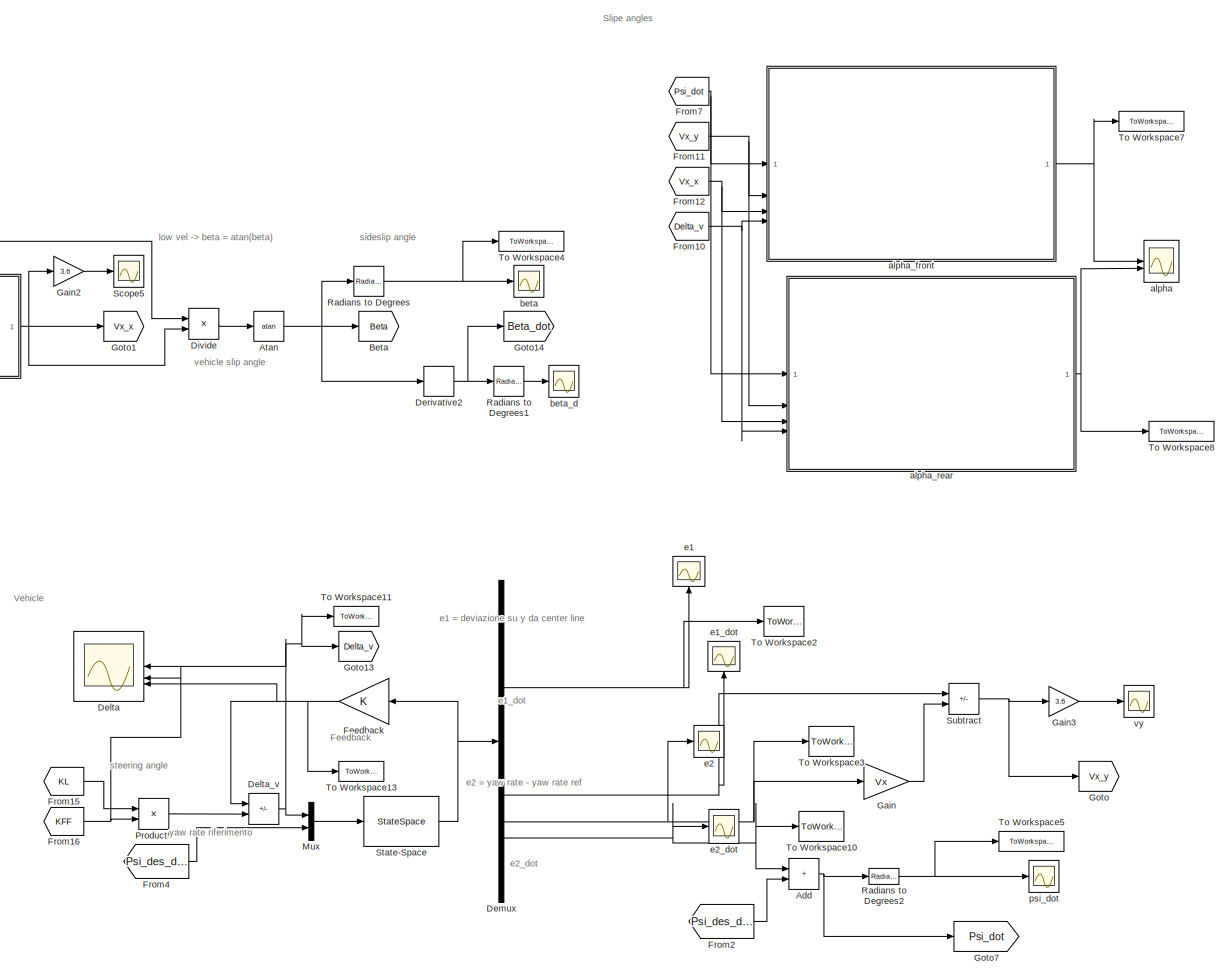
[diagram: root canvas - part 1/5, top right region]
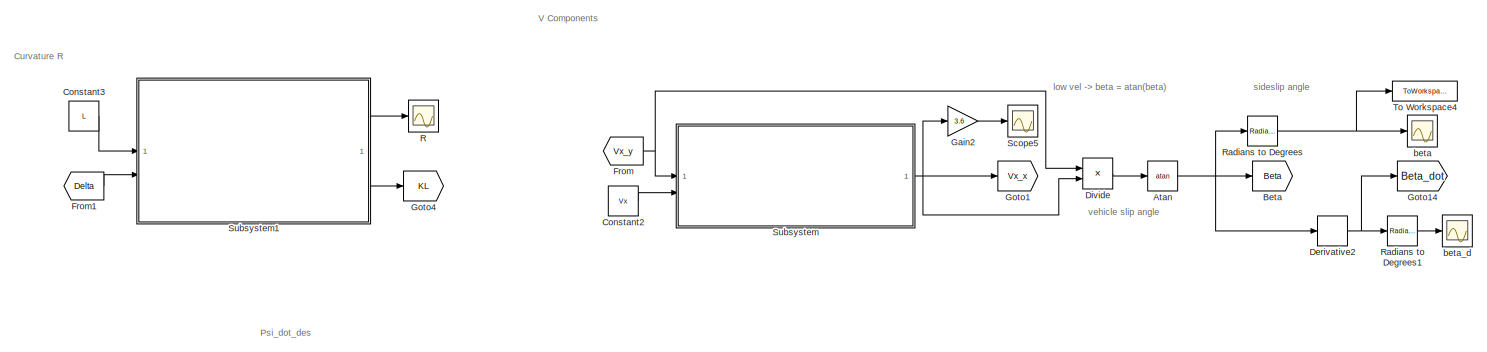
[diagram: root canvas - part 2/5, top center region]
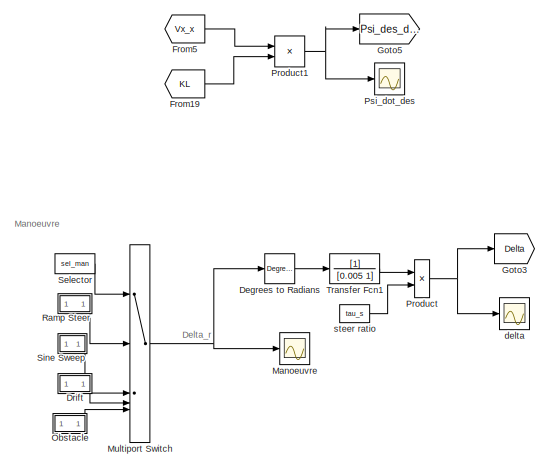
[diagram: root canvas - part 3/5, middle left region]
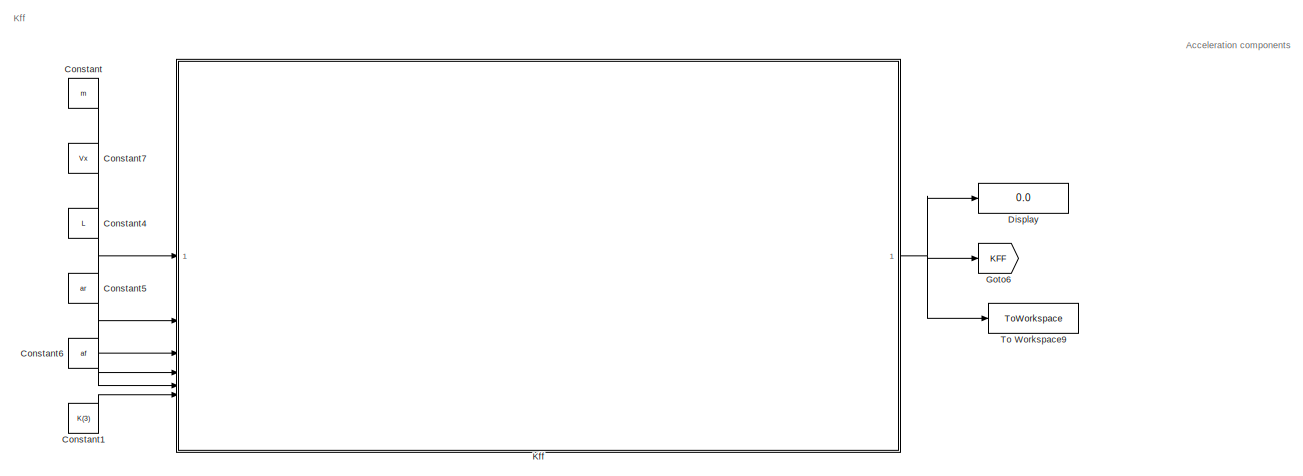
[diagram: root canvas - part 4/5, bottom left region]
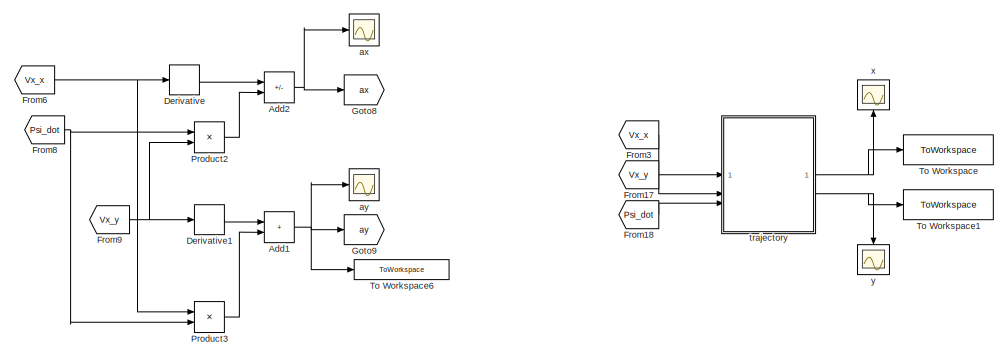
[diagram: root canvas - part 5/5, bottom right region]
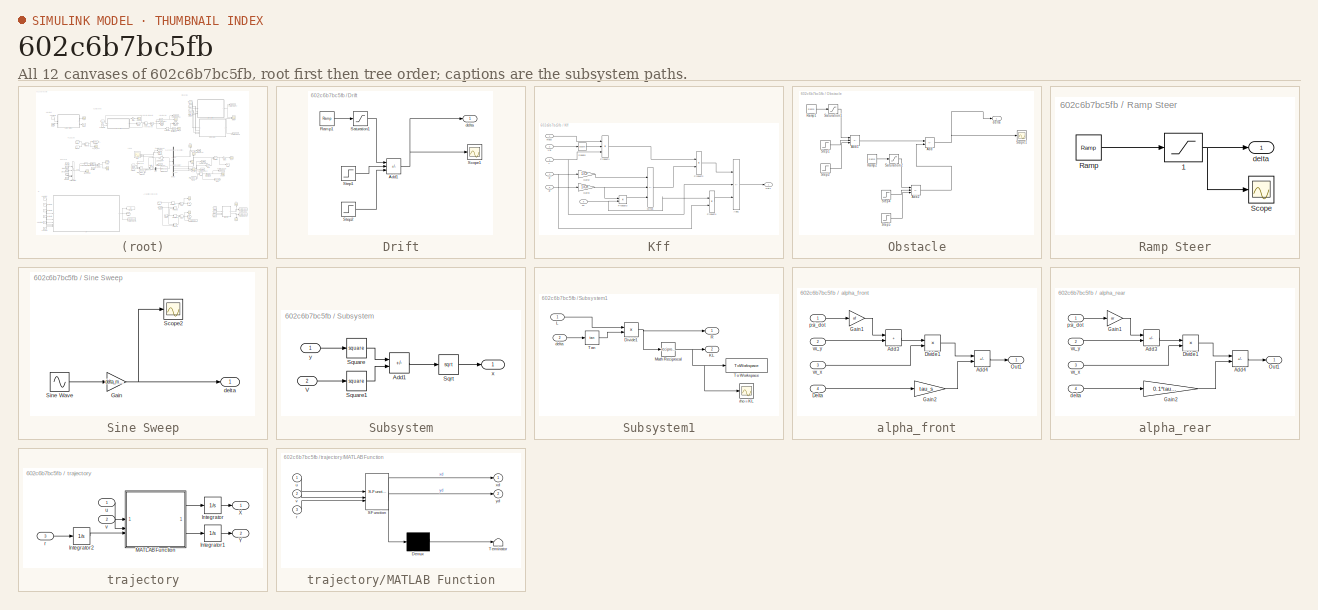
[diagram: thumbnail index - all 12 canvases of the model, root first then tree order]
MODEL slx_602c6b7bc5fb
KIND model
CONFIG AbsTol = auto
CONFIG EnableMultiTasking = off
CONFIG FixedStep = auto
CONFIG MaxStep = auto
CONFIG MinStep = auto
CONFIG RelTol = 1e-3
CONFIG SampleTimeConstraint = Unconstrained
CONFIG SolverName = VariableStepAuto
CONFIG StartTime = 0.0
CONFIG StopTime = Ts
BLOCK [Sum] Add
  IconShape = rectangular
BLOCK [Sum] Add1
  IconShape = rectangular
BLOCK [Sum] Add2
  IconShape = rectangular
  Inputs = +-
BLOCK [Trigonometry] Atan
  Operator = atan
BLOCK [Goto] Beta
  GotoTag = Beta
  TagVisibility = global
BLOCK [Constant] Constant
  Value = m
BLOCK [Constant] Constant1
  Value = K(3)
BLOCK [Constant] Constant2
  Value = Vx
BLOCK [Constant] Constant3
  Value = L
BLOCK [Constant] Constant4
  Value = L
BLOCK [Constant] Constant5
  Value = ar
BLOCK [Constant] Constant6
  Value = af
BLOCK [Constant] Constant7
  Value = Vx
BLOCK [Reference] Degrees to Radians  REF=simulink_extras/Transformations/Degrees to
Radians
  SourceBlock = simulink_extras/Transformations/Degrees to\nRadians
  SourceType = DegreesToRadians
BLOCK [Scope] Delta
  Floating = off
  NameLocation = top
  NumInputPorts = 3
  ScopeSpecificationString = Simulink.scopes.TimeScopeBlockCfg('CurrentConfiguration', extmgr.ConfigurationSet(extmgr.Configuration('Core','General UI',true),extmgr.Configuration('Core','Source UI',true),extmgr.Configuration('Sources','WiredSimulink',true,'DataLoggingVariableName','ScopeData4'),extmgr.Configuration('Visuals','Time Domain',true,'SerializedDisplays',{struct('MinYLimReal','-0.79689','MaxYLimReal','0.13687','YLab...<+1619ch>
BLOCK [Sum] Delta_v
  IconShape = rectangular
  Inputs = -+
BLOCK [Demux] Demux
BLOCK [Derivative] Derivative
BLOCK [Derivative] Derivative1
BLOCK [Derivative] Derivative2
BLOCK [Display] Display
  Decimation = 1
BLOCK [Product] Divide
  Inputs = */
BLOCK [SubSystem] Drift
BLOCK [Sum] Drift/Add1
  IconShape = rectangular
  Inputs = +-+
BLOCK [Reference] Drift/Ramp1  REF=simulink/Sources/Ramp
  SourceBlock = simulink/Sources/Ramp
  SourceType = Ramp
BLOCK [Saturate] Drift/Saturation1
  LowerLimit = 0
  UpperLimit = dvol_drift1
BLOCK [Scope] Drift/Scope1
  Floating = off
  NumInputPorts = 1
  ScopeSpecificationString = Simulink.scopes.TimeScopeBlockCfg('CurrentConfiguration', extmgr.ConfigurationSet(extmgr.Configuration('Core','General UI',true),extmgr.Configuration('Core','Source UI',true),extmgr.Configuration('Sources','WiredSimulink',true,'DataLoggingVariableName','ScopeData3'),extmgr.Configuration('Visuals','Time Domain',true,'SerializedDisplays',{struct('MinYLimReal','-99.375','MaxYLimReal','44.375','YLabel...<+1478ch>
BLOCK [Step] Drift/Step1
  After = dvol_drift2
  SampleTime = 0
  Time = t_drift_cs_1
BLOCK [Step] Drift/Step2
  After = dvol_drift3
  SampleTime = 0
  Time = t_drift_cs_2
BLOCK [Outport] Drift/delta
  VectorParamsAs1DForOutWhenUnconnected = off
BLOCK [Gain] Feedback
  Gain = K
  Multiplication = Matrix(K*u)
  NameLocation = top
BLOCK [From] From
  GotoTag = Vx_y
  TagVisibility = global
BLOCK [From] From1
  GotoTag = Delta
  TagVisibility = global
BLOCK [From] From10
  GotoTag = Delta_v
  TagVisibility = global
BLOCK [From] From11
  GotoTag = Vx_y
  TagVisibility = global
BLOCK [From] From12
  GotoTag = Vx_x
BLOCK [From] From15
  GotoTag = KL
BLOCK [From] From16
  GotoTag = KFF
BLOCK [From] From17
  GotoTag = Vx_y
  TagVisibility = global
BLOCK [From] From18
  GotoTag = Psi_dot
  TagVisibility = global
BLOCK [From] From19
  GotoTag = KL
BLOCK [From] From2
  GotoTag = Psi_des_dot
  TagVisibility = global
BLOCK [From] From3
  GotoTag = Vx_x
BLOCK [From] From4
  GotoTag = Psi_des_dot
  TagVisibility = global
BLOCK [From] From5
  GotoTag = Vx_x
BLOCK [From] From6
  GotoTag = Vx_x
BLOCK [From] From7
  GotoTag = Psi_dot
  TagVisibility = global
BLOCK [From] From8
  GotoTag = Psi_dot
  TagVisibility = global
BLOCK [From] From9
  GotoTag = Vx_y
  TagVisibility = global
BLOCK [Gain] Gain
  Gain = Vx
BLOCK [Gain] Gain2
  Gain = 3.6
BLOCK [Gain] Gain3
  Gain = 3.6
BLOCK [Goto] Goto
  GotoTag = Vx_y
  TagVisibility = global
BLOCK [Goto] Goto1
  GotoTag = Vx_x
BLOCK [Goto] Goto13
  GotoTag = Delta_v
  TagVisibility = global
BLOCK [Goto] Goto14
  GotoTag = Beta_dot
  TagVisibility = global
BLOCK [Goto] Goto3
  GotoTag = Delta
  TagVisibility = global
BLOCK [Goto] Goto4
  GotoTag = KL
  NameLocation = top
BLOCK [Goto] Goto5
  GotoTag = Psi_des_dot
  TagVisibility = global
BLOCK [Goto] Goto6
  GotoTag = KFF
BLOCK [Goto] Goto7
  GotoTag = Psi_dot
  TagVisibility = global
BLOCK [Goto] Goto8
  GotoTag = ax
  TagVisibility = global
BLOCK [Goto] Goto9
  GotoTag = ay
  TagVisibility = global
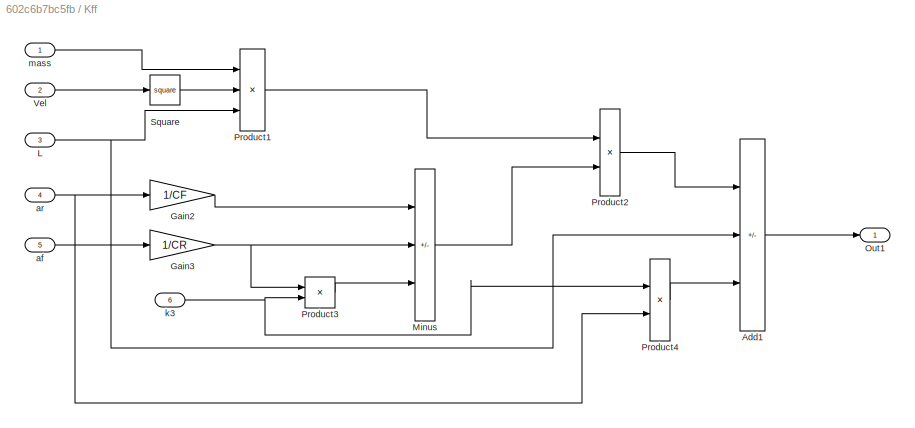
BLOCK [SubSystem] Kff
BLOCK [Sum] Kff/Add1
  IconShape = rectangular
  Inputs = ++-
BLOCK [Gain] Kff/Gain2
  Gain = 1/CF
BLOCK [Gain] Kff/Gain3
  Gain = 1/CR
BLOCK [Inport] Kff/L
  Port = 3
BLOCK [Sum] Kff/Minus
  IconShape = rectangular
  Inputs = +-+
BLOCK [Outport] Kff/Out1
BLOCK [Product] Kff/Product1
  Inputs = **/
BLOCK [Product] Kff/Product2
BLOCK [Product] Kff/Product3
BLOCK [Product] Kff/Product4
BLOCK [Math] Kff/Square
  Operator = square
BLOCK [Inport] Kff/Vel
  Port = 2
BLOCK [Inport] Kff/af
  Port = 5
BLOCK [Inport] Kff/ar
  Port = 4
BLOCK [Inport] Kff/k3
  Port = 6
BLOCK [Inport] Kff/mass
BLOCK [Scope] Manoeuvre
  Floating = off
  NumInputPorts = 1
  ScopeSpecificationString = Simulink.scopes.TimeScopeBlockCfg('CurrentConfiguration', extmgr.ConfigurationSet(extmgr.Configuration('Core','General UI',true),extmgr.Configuration('Core','Source UI',true),extmgr.Configuration('Sources','WiredSimulink',true,'DataLoggingVariableName','ScopeData1'),extmgr.Configuration('Visuals','Time Domain',true,'SerializedDisplays',{struct('MinYLimReal','-37.5','MaxYLimReal','37.5','YLabelReal...<+1520ch>
BLOCK [MultiPortSwitch] Multiport Switch
  InputSameDT = off
  Inputs = 4
  SaturateOnIntegerOverflow = off
BLOCK [Mux] Mux
  DisplayOption = bar
  Inputs = 2
BLOCK [SubSystem] Obstacle
BLOCK [Sum] Obstacle/Add
  IconShape = rectangular
  Inputs = +-
BLOCK [Sum] Obstacle/Add1
  IconShape = rectangular
  Inputs = +-+
BLOCK [Sum] Obstacle/Add2
  IconShape = rectangular
  Inputs = +-+
BLOCK [Reference] Obstacle/Ramp1  REF=simulink/Sources/Ramp
  SourceBlock = simulink/Sources/Ramp
  SourceType = Ramp
BLOCK [Reference] Obstacle/Ramp2  REF=simulink/Sources/Ramp
  SourceBlock = simulink/Sources/Ramp
  SourceType = Ramp
BLOCK [Saturate] Obstacle/Saturation1
  LowerLimit = 0
  UpperLimit = dvol_drift1
BLOCK [Saturate] Obstacle/Saturation2
  LowerLimit = 0
  UpperLimit = dvol_drift1
BLOCK [Scope] Obstacle/Scope1
  Floating = off
  NumInputPorts = 1
  ScopeSpecificationString = Simulink.scopes.TimeScopeBlockCfg('CurrentConfiguration', extmgr.ConfigurationSet(extmgr.Configuration('Core','General UI',true),extmgr.Configuration('Core','Source UI',true),extmgr.Configuration('Sources','WiredSimulink',true,'DataLoggingVariableName','ScopeData3'),extmgr.Configuration('Visuals','Time Domain',true,'SerializedDisplays',{struct('MinYLimReal','-37.5','MaxYLimReal','37.5','YLabelReal...<+1433ch>
BLOCK [Step] Obstacle/Step1
  After = dvol_drift1*2
  SampleTime = 0
  Time = t_drift_cs_1+1
BLOCK [Step] Obstacle/Step2
  After = dvol_drift1
  SampleTime = 0
  Time = t_drift_cs_1*2+1
BLOCK [Step] Obstacle/Step4
  After = dvol_drift1*2
  SampleTime = 0
  Time = t_drift_cs_1+delay_return
BLOCK [Step] Obstacle/Step5
  After = dvol_drift1
  SampleTime = 0
  Time = t_drift_cs_1*2+delay_return
BLOCK [Outport] Obstacle/delta
  VectorParamsAs1DForOutWhenUnconnected = off
BLOCK [Product] Product
  Inputs = */
  RndMeth = Zero
BLOCK [Product] Product1
BLOCK [Product] Product2
BLOCK [Product] Product3
BLOCK [Product] Product5
BLOCK [Scope] Psi_dot_des
  Floating = off
  NumInputPorts = 1
  ScopeSpecificationString = Simulink.scopes.TimeScopeBlockCfg('CurrentConfiguration', extmgr.ConfigurationSet(extmgr.Configuration('Core','General UI',true),extmgr.Configuration('Core','Source UI',true),extmgr.Configuration('Sources','WiredSimulink',true,'DataLoggingVariableName','ScopeData6'),extmgr.Configuration('Visuals','Time Domain',true,'SerializedDisplays',{struct('MinYLimReal','-0.01082','MaxYLimReal','0.09741','YLab...<+1512ch>
BLOCK [Scope] R
  Floating = off
  NumInputPorts = 1
  ScopeSpecificationString = Simulink.scopes.TimeScopeBlockCfg('CurrentConfiguration', extmgr.ConfigurationSet(extmgr.Configuration('Core','General UI',true),extmgr.Configuration('Core','Source UI',true),extmgr.Configuration('Sources','WiredSimulink',true,'DataLoggingVariableName','ScopeData2'),extmgr.Configuration('Visuals','Time Domain',true,'SerializedDisplays',{struct('MinYLimReal','-577.2819','MaxYLimReal','6157.92286','...<+1476ch>
BLOCK [Reference] Radians to Degrees  REF=simulink_extras/Transformations/Radians
to Degrees
  SourceBlock = simulink_extras/Transformations/Radians\nto Degrees
  SourceType = RadiansToDegrees
BLOCK [Reference] Radians to Degrees1  REF=simulink_extras/Transformations/Radians
to Degrees
  SourceBlock = simulink_extras/Transformations/Radians\nto Degrees
  SourceType = RadiansToDegrees
BLOCK [Reference] Radians to Degrees2  REF=simulink_extras/Transformations/Radians
to Degrees
  SourceBlock = simulink_extras/Transformations/Radians\nto Degrees
  SourceType = RadiansToDegrees
BLOCK [SubSystem] Ramp Steer
BLOCK [Saturate] Ramp Steer/  1
  LowerLimit = 0
  UpperLimit = delta_max
BLOCK [Reference] Ramp Steer/Ramp  REF=simulink/Sources/Ramp
  SourceBlock = simulink/Sources/Ramp
  SourceType = Ramp
BLOCK [Scope] Ramp Steer/Scope
  Floating = off
  NumInputPorts = 1
  ScopeSpecificationString = Simulink.scopes.TimeScopeBlockCfg('CurrentConfiguration', extmgr.ConfigurationSet(extmgr.Configuration('Core','General UI',true),extmgr.Configuration('Core','Source UI',true),extmgr.Configuration('Sources','WiredSimulink',true,'DataLoggingVariableName','ScopeData1'),extmgr.Configuration('Visuals','Time Domain',true,'SerializedDisplays',{struct('MinYLimReal','-1.25','MaxYLimReal','11.25','YLabelRea...<+1379ch>
BLOCK [Outport] Ramp Steer/delta
  VectorParamsAs1DForOutWhenUnconnected = off
BLOCK [Scope] Scope5
  Floating = off
  NumInputPorts = 1
  ScopeSpecificationString = Simulink.scopes.TimeScopeBlockCfg('CurrentConfiguration', extmgr.ConfigurationSet(extmgr.Configuration('Core','General UI',true),extmgr.Configuration('Core','Source UI',true),extmgr.Configuration('Sources','WiredSimulink',true,'DataLoggingVariableName','ScopeData1'),extmgr.Configuration('Visuals','Time Domain',true,'SerializedDisplays',{struct('MinYLimReal','29.99152','MaxYLimReal','30.00094','YLa...<+1493ch>
BLOCK [Constant] Selector
  Value = sel_man
BLOCK [SubSystem] Sine Sweep
BLOCK [Gain] Sine Sweep/Gain
  Gain = delta_max
BLOCK [Scope] Sine Sweep/Scope2
  Floating = off
  NumInputPorts = 1
  ScopeSpecificationString = Simulink.scopes.TimeScopeBlockCfg('CurrentConfiguration', extmgr.ConfigurationSet(extmgr.Configuration('Core','General UI',true),extmgr.Configuration('Core','Source UI',true),extmgr.Configuration('Sources','WiredSimulink',true,'DataLoggingVariableName','ScopeData2'),extmgr.Configuration('Visuals','Time Domain',true,'SerializedDisplays',{struct('MinYLimReal','-25.00000','MaxYLimReal','25.00000','YL...<+1398ch>
BLOCK [Sin] Sine Sweep/Sine Wave
  Amplitude = 0.7
  Frequency = 0.5
  SampleTime = 0
BLOCK [Outport] Sine Sweep/delta
  InitialOutput = 0
  NameLocation = top
  VectorParamsAs1DForOutWhenUnconnected = off
BLOCK [StateSpace] State-Space
  A = A
  B = B
  C = eye(4)
  D = zeros(4,2)
  InitialCondition = 0
BLOCK [SubSystem] Subsystem
BLOCK [Sum] Subsystem/Add1
  IconShape = rectangular
  Inputs = -+
BLOCK [Sqrt] Subsystem/Sqrt
BLOCK [Math] Subsystem/Square
  Operator = square
BLOCK [Math] Subsystem/Square1
  Operator = square
BLOCK [Inport] Subsystem/V
  Port = 2
BLOCK [Outport] Subsystem/x
BLOCK [Inport] Subsystem/y
BLOCK [SubSystem] Subsystem1
BLOCK [Product] Subsystem1/Divide1
  Inputs = */
BLOCK [Outport] Subsystem1/KL
  Port = 2
BLOCK [Inport] Subsystem1/L
BLOCK [Math] Subsystem1/Math Reciprocal
  Operator = reciprocal
  SignedPower = on
BLOCK [Outport] Subsystem1/R
BLOCK [Trigonometry] Subsystem1/Tan
  Operator = tan
BLOCK [ToWorkspace] Subsystem1/To Workspace
  FixptAsFi = on
  MaxDataPoints = inf
  SampleTime = -1
  SaveFormat = Timeseries
  VariableName = KL
BLOCK [Inport] Subsystem1/delta
  Port = 2
BLOCK [Scope] Subsystem1/rho = KL
  Floating = off
  NumInputPorts = 1
  ScopeSpecificationString = Simulink.scopes.TimeScopeBlockCfg('CurrentConfiguration', extmgr.ConfigurationSet(extmgr.Configuration('Core','General UI',true),extmgr.Configuration('Core','Source UI',true),extmgr.Configuration('Sources','WiredSimulink',true,'DataLoggingVariableName','ScopeData1'),extmgr.Configuration('Visuals','Time Domain',true,'SerializedDisplays',{struct('MinYLimReal','-0.01561','MaxYLimReal','0.01559','YLab...<+1463ch>
BLOCK [Sum] Subtract
  IconShape = rectangular
  Inputs = +-
BLOCK [ToWorkspace] To Workspace
  FixptAsFi = on
  MaxDataPoints = inf
  SampleTime = -1
  SaveFormat = Timeseries
  VariableName = X
BLOCK [ToWorkspace] To Workspace1
  FixptAsFi = on
  MaxDataPoints = inf
  SampleTime = -1
  SaveFormat = Timeseries
  VariableName = Y
BLOCK [ToWorkspace] To Workspace10
  FixptAsFi = on
  MaxDataPoints = inf
  SampleTime = -1
  SaveFormat = Timeseries
  VariableName = e2_dot
BLOCK [ToWorkspace] To Workspace11
  FixptAsFi = on
  MaxDataPoints = inf
  SampleTime = -1
  SaveFormat = Timeseries
  VariableName = delta_v
BLOCK [ToWorkspace] To Workspace13
  FixptAsFi = on
  MaxDataPoints = inf
  SampleTime = -1
  SaveFormat = Timeseries
  VariableName = Feedback
BLOCK [ToWorkspace] To Workspace2
  FixptAsFi = on
  MaxDataPoints = inf
  SampleTime = -1
  SaveFormat = Timeseries
  VariableName = e1
BLOCK [ToWorkspace] To Workspace3
  FixptAsFi = on
  MaxDataPoints = inf
  SampleTime = -1
  SaveFormat = Timeseries
  VariableName = e2
BLOCK [ToWorkspace] To Workspace4
  FixptAsFi = on
  MaxDataPoints = inf
  SampleTime = -1
  SaveFormat = Timeseries
  VariableName = beta
BLOCK [ToWorkspace] To Workspace5
  FixptAsFi = on
  MaxDataPoints = inf
  SampleTime = -1
  SaveFormat = Timeseries
  VariableName = yaw_rate
BLOCK [ToWorkspace] To Workspace6
  FixptAsFi = on
  MaxDataPoints = inf
  SampleTime = -1
  SaveFormat = Timeseries
  VariableName = lateral_acc
BLOCK [ToWorkspace] To Workspace7
  FixptAsFi = on
  MaxDataPoints = inf
  SampleTime = -1
  SaveFormat = Timeseries
  VariableName = slipangles_front
BLOCK [ToWorkspace] To Workspace8
  FixptAsFi = on
  MaxDataPoints = inf
  SampleTime = -1
  SaveFormat = Timeseries
  VariableName = slipangles_rear
BLOCK [ToWorkspace] To Workspace9
  FixptAsFi = on
  MaxDataPoints = inf
  SampleTime = -1
  SaveFormat = Timeseries
  VariableName = KFF
BLOCK [TransferFcn] Transfer Fcn1
  Denominator = [0.005 1]
BLOCK [Scope] alpha
  Floating = off
  NumInputPorts = 2
  ScopeSpecificationString = Simulink.scopes.TimeScopeBlockCfg('CurrentConfiguration', extmgr.ConfigurationSet(extmgr.Configuration('Core','General UI',true),extmgr.Configuration('Core','Source UI',true),extmgr.Configuration('Sources','WiredSimulink',true,'DataLoggingVariableName','ScopeData5'),extmgr.Configuration('Visuals','Time Domain',true,'SerializedDisplays',{struct('MinYLimReal','-1.03691','MaxYLimReal','1.07293','YLab...<+1594ch>
BLOCK [SubSystem] alpha_front
BLOCK [Sum] alpha_front/Add3
  IconShape = rectangular
BLOCK [Sum] alpha_front/Add4
  IconShape = rectangular
  Inputs = -+
BLOCK [Inport] alpha_front/Delta
  Port = 4
BLOCK [Product] alpha_front/Divide1
  Inputs = */
BLOCK [Gain] alpha_front/Gain1
  Gain = af
BLOCK [Gain] alpha_front/Gain2
  Gain = tau_s
BLOCK [Outport] alpha_front/Out1
BLOCK [Inport] alpha_front/psi_dot
BLOCK [Inport] alpha_front/vx_x
  Port = 3
BLOCK [Inport] alpha_front/vx_y
  Port = 2
BLOCK [SubSystem] alpha_rear
BLOCK [Sum] alpha_rear/Add3
  IconShape = rectangular
  Inputs = -+
BLOCK [Sum] alpha_rear/Add4
  IconShape = rectangular
  Inputs = -+
BLOCK [Product] alpha_rear/Divide1
  Inputs = */
BLOCK [Gain] alpha_rear/Gain1
  Gain = ar
BLOCK [Gain] alpha_rear/Gain2
  Gain = 0.1*tau_s
BLOCK [Outport] alpha_rear/Out1
BLOCK [Inport] alpha_rear/delta
  Port = 4
BLOCK [Inport] alpha_rear/psi_dot
BLOCK [Inport] alpha_rear/vx_x
  Port = 3
BLOCK [Inport] alpha_rear/vx_y
  Port = 2
BLOCK [Scope] ax
  Floating = off
  NumInputPorts = 1
  ScopeSpecificationString = Simulink.scopes.TimeScopeBlockCfg('CurrentConfiguration', extmgr.ConfigurationSet(extmgr.Configuration('Core','General UI',true),extmgr.Configuration('Core','Source UI',true),extmgr.Configuration('Sources','WiredSimulink',true,'DataLoggingVariableName','ScopeData1'),extmgr.Configuration('Visuals','Time Domain',true,'SerializedDisplays',{struct('MinYLimReal','-0.00627','MaxYLimReal','0.0007','YLabe...<+1479ch>
BLOCK [Scope] ay
  Floating = off
  NumInputPorts = 1
  ScopeSpecificationString = Simulink.scopes.TimeScopeBlockCfg('CurrentConfiguration', extmgr.ConfigurationSet(extmgr.Configuration('Core','General UI',true),extmgr.Configuration('Core','Source UI',true),extmgr.Configuration('Sources','WiredSimulink',true,'DataLoggingVariableName','ScopeData2'),extmgr.Configuration('Visuals','Time Domain',true,'SerializedDisplays',{struct('MinYLimReal','-0.26983','MaxYLimReal','2.42847','YLab...<+1452ch>
BLOCK [Scope] beta
  Floating = off
  NumInputPorts = 1
  ScopeSpecificationString = Simulink.scopes.TimeScopeBlockCfg('CurrentConfiguration', extmgr.ConfigurationSet(extmgr.Configuration('Core','General UI',true),extmgr.Configuration('Core','Source UI',true),extmgr.Configuration('Sources','WiredSimulink',true,'DataLoggingVariableName','ScopeData3'),extmgr.Configuration('Visuals','Time Domain',true,'SerializedDisplays',{struct('MinYLimReal','-0.11642','MaxYLimReal','0.24314','YLab...<+1518ch>
BLOCK [Scope] beta_d
  Floating = off
  NumInputPorts = 1
  ScopeSpecificationString = Simulink.scopes.TimeScopeBlockCfg('CurrentConfiguration', extmgr.ConfigurationSet(extmgr.Configuration('Core','General UI',true),extmgr.Configuration('Core','Source UI',true),extmgr.Configuration('Sources','WiredSimulink',true,'DataLoggingVariableName','ScopeData6'),extmgr.Configuration('Visuals','Time Domain',true,'SerializedDisplays',{struct('MinYLimReal','-10.2393','MaxYLimReal','5.77643','YLab...<+1502ch>
BLOCK [Scope] delta
  Floating = off
  NumInputPorts = 1
  ScopeSpecificationString = Simulink.scopes.TimeScopeBlockCfg('CurrentConfiguration', extmgr.ConfigurationSet(extmgr.Configuration('Core','General UI',true),extmgr.Configuration('Core','Source UI',true),extmgr.Configuration('Sources','WiredSimulink',true,'DataLoggingVariableName','ScopeData4'),extmgr.Configuration('Visuals','Time Domain',true,'SerializedDisplays',{struct('MinYLimReal','-0.00364','MaxYLimReal','0.03272','YLab...<+1481ch>
BLOCK [Scope] e1
  Floating = off
  NameLocation = right
  NumInputPorts = 1
  ScopeSpecificationString = Simulink.scopes.TimeScopeBlockCfg('CurrentConfiguration', extmgr.ConfigurationSet(extmgr.Configuration('Core','General UI',true),extmgr.Configuration('Core','Source UI',true),extmgr.Configuration('Sources','WiredSimulink',true),extmgr.Configuration('Visuals','Time Domain',true,'SerializedDisplays',{struct('MinYLimReal','-0.19224','MaxYLimReal','0.19225','YLabelReal','','MinYLimMag','0.00000','MaxY...<+1493ch>
BLOCK [Scope] e1_dot
  Floating = off
  NameLocation = right
  NumInputPorts = 1
  ScopeSpecificationString = Simulink.scopes.TimeScopeBlockCfg('CurrentConfiguration', extmgr.ConfigurationSet(extmgr.Configuration('Core','General UI',true),extmgr.Configuration('Core','Source UI',true),extmgr.Configuration('Sources','WiredSimulink',true,'DataLoggingVariableName','ScopeData7'),extmgr.Configuration('Visuals','Time Domain',true,'SerializedDisplays',{struct('MinYLimReal','-0.15568','MaxYLimReal','0.08956','YLab...<+1507ch>
BLOCK [Scope] e2
  Floating = off
  NumInputPorts = 1
  ScopeSpecificationString = Simulink.scopes.TimeScopeBlockCfg('CurrentConfiguration', extmgr.ConfigurationSet(extmgr.Configuration('Core','General UI',true),extmgr.Configuration('Core','Source UI',true),extmgr.Configuration('Sources','WiredSimulink',true,'DataLoggingVariableName','ScopeData2'),extmgr.Configuration('Visuals','Time Domain',true,'SerializedDisplays',{struct('MinYLimReal','-1225559.88456','MaxYLimReal','136173.3...<+1527ch>
BLOCK [Scope] e2_dot
  Floating = off
  NumInputPorts = 1
  ScopeSpecificationString = Simulink.scopes.TimeScopeBlockCfg('CurrentConfiguration', extmgr.ConfigurationSet(extmgr.Configuration('Core','General UI',true),extmgr.Configuration('Core','Source UI',true),extmgr.Configuration('Sources','WiredSimulink',true,'DataLoggingVariableName','ScopeData3'),extmgr.Configuration('Visuals','Time Domain',true,'SerializedDisplays',{struct('MinYLimReal','-4981947.94357','MaxYLimReal','553549.7...<+1592ch>
BLOCK [Scope] psi_dot 
  Floating = off
  NumInputPorts = 1
  ScopeSpecificationString = Simulink.scopes.TimeScopeBlockCfg('CurrentConfiguration', extmgr.ConfigurationSet(extmgr.Configuration('Core','General UI',true),extmgr.Configuration('Core','Source UI',true),extmgr.Configuration('Sources','WiredSimulink',true,'DataLoggingVariableName','ScopeData6'),extmgr.Configuration('Visuals','Time Domain',true,'SerializedDisplays',{struct('MinYLimReal','-335.0095','MaxYLimReal','38.71147','YL...<+1504ch>
BLOCK [Constant] steer ratio 
  Value = tau_s
BLOCK [SubSystem] trajectory
BLOCK [Integrator] trajectory/Integrator
BLOCK [Integrator] trajectory/Integrator1
BLOCK [Integrator] trajectory/Integrator2
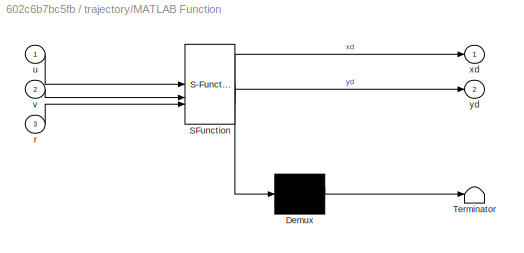
BLOCK [SubSystem] trajectory/MATLAB Function
  ErrorFcn = Stateflow.Translate.translate
  PermitHierarchicalResolution = ExplicitOnly
  SFBlockType = MATLAB Function
  TreatAsAtomicUnit = on
BLOCK [Demux] trajectory/MATLAB Function/ Demux 
  Outputs = 1
BLOCK [S-Function] trajectory/MATLAB Function/ SFunction 
  EnableBusSupport = on
  FunctionName = sf_sfun
  PortCounts = [3 3]
  SFcnIsStateOwnerBlock = off
  SFunctionDeploymentMode = off
  Tag = Stateflow S-Function 2
BLOCK [Terminator] trajectory/MATLAB Function/ Terminator 
BLOCK [Inport] trajectory/MATLAB Function/r
  Port = 3
BLOCK [Inport] trajectory/MATLAB Function/u
BLOCK [Inport] trajectory/MATLAB Function/v
  Port = 2
BLOCK [Outport] trajectory/MATLAB Function/xd
BLOCK [Outport] trajectory/MATLAB Function/yd
  Port = 2
BLOCK [Outport] trajectory/X
BLOCK [Outport] trajectory/Y
  Port = 2
BLOCK [Inport] trajectory/r
  Port = 3
BLOCK [Inport] trajectory/u
BLOCK [Inport] trajectory/v
  Port = 2
BLOCK [Scope] vy
  Floating = off
  NumInputPorts = 1
  ScopeSpecificationString = Simulink.scopes.TimeScopeBlockCfg('CurrentConfiguration', extmgr.ConfigurationSet(extmgr.Configuration('Core','General UI',true),extmgr.Configuration('Core','Source UI',true),extmgr.Configuration('Sources','WiredSimulink',true,'DataLoggingVariableName','ScopeData5'),extmgr.Configuration('Visuals','Time Domain',true,'SerializedDisplays',{struct('MinYLimReal','-0.01746','MaxYLimReal','0.1571','YLabe...<+1520ch>
BLOCK [Scope] x
  Floating = off
  NameLocation = right
  NumInputPorts = 1
  ScopeSpecificationString = Simulink.scopes.TimeScopeBlockCfg('CurrentConfiguration', extmgr.ConfigurationSet(extmgr.Configuration('Core','General UI',true),extmgr.Configuration('Core','Source UI',true),extmgr.Configuration('Sources','WiredSimulink',true,'DataLoggingVariableName','ScopeData1'),extmgr.Configuration('Visuals','Time Domain',true,'SerializedDisplays',{struct('MinYLimReal','-10.40683','MaxYLimReal','93.66147','YL...<+1497ch>
BLOCK [Scope] y
  Floating = off
  NameLocation = left
  NumInputPorts = 1
  ScopeSpecificationString = Simulink.scopes.TimeScopeBlockCfg('CurrentConfiguration', extmgr.ConfigurationSet(extmgr.Configuration('Core','General UI',true),extmgr.Configuration('Core','Source UI',true),extmgr.Configuration('Sources','WiredSimulink',true,'DataLoggingVariableName','ScopeData2'),extmgr.Configuration('Visuals','Time Domain',true,'SerializedDisplays',{struct('MinYLimReal','-0.4231','MaxYLimReal','3.80627','YLabe...<+1489ch>
ANNOTATION (root): Feedback
ANNOTATION (root): Acceleration components
ANNOTATION (root): Curvature R
ANNOTATION (root): Delta_r
ANNOTATION (root): Kff
ANNOTATION (root): Manoeuvre
ANNOTATION (root): Psi_dot_des
ANNOTATION (root): Slipe angles
ANNOTATION (root): V Components
ANNOTATION (root): Vehicle
ANNOTATION (root): e1 = deviazione su y da center line
ANNOTATION (root): e1_dot
ANNOTATION (root): e2 = yaw rate - yaw rate ref
ANNOTATION (root): e2_dot
ANNOTATION (root): low vel -> beta = atan(beta)
ANNOTATION (root): sideslip angle
ANNOTATION (root): steering angle
ANNOTATION (root): vehicle slip angle
ANNOTATION (root): yaw rate riferimento
NET Add1:1 -> Goto9:1, To Workspace6:1, ay:1
NET Add2:1 -> Goto8:1, ax:1
NET Add:1 -> Goto7:1, Radians to Degrees2:1
NET Atan:1 -> Beta:1, Derivative2:1, Radians to Degrees:1
LINE Constant1:1 -> Kff:6
LINE Constant2:1 -> Subsystem:2
LINE Constant3:1 -> Subsystem1:1
LINE Constant4:1 -> Kff:3
LINE Constant5:1 -> Kff:4
LINE Constant6:1 -> Kff:5
LINE Constant7:1 -> Kff:2
LINE Constant:1 -> Kff:1
LINE Degrees to Radians:1 -> Transfer Fcn1:1
NET Delta_v:1 -> Delta:1, Goto13:1, Mux:1, To Workspace11:1
NET Demux:1 -> To Workspace2:1, e1:1
NET Demux:2 -> Subtract:1, e1_dot:1
NET Demux:3 -> Gain:1, To Workspace3:1, e2:1
NET Demux:4 -> Add:1, To Workspace10:1, e2_dot:1
LINE Derivative1:1 -> Add1:1
NET Derivative2:1 -> Goto14:1, Radians to Degrees1:1
LINE Derivative:1 -> Add2:1
LINE Divide:1 -> Atan:1
NET Drift/Add1:1 -> Drift/Scope1:1, Drift/delta:1
LINE Drift/Ramp1:1 -> Drift/Saturation1:1
LINE Drift/Saturation1:1 -> Drift/Add1:1
LINE Drift/Step1:1 -> Drift/Add1:2
LINE Drift/Step2:1 -> Drift/Add1:3
LINE Drift:1 -> Multiport Switch:4
NET Feedback:1 -> Delta:3, Delta_v:1, To Workspace13:1
NET From10:1 -> alpha_front:4, alpha_rear:4
NET From11:1 -> alpha_front:2, alpha_rear:2
NET From12:1 -> alpha_front:3, alpha_rear:3
LINE From15:1 -> Product5:1
NET From16:1 -> Delta:2, Product5:2
LINE From17:1 -> trajectory:2
LINE From18:1 -> trajectory:3
LINE From19:1 -> Product1:2
LINE From1:1 -> Subsystem1:2
LINE From2:1 -> Add:2
LINE From3:1 -> trajectory:1
LINE From4:1 -> Mux:2
LINE From5:1 -> Product1:1
NET From6:1 -> Derivative:1, Product3:1
NET From7:1 -> alpha_front:1, alpha_rear:1
NET From8:1 -> Product2:1, Product3:2
NET From9:1 -> Derivative1:1, Product2:2
NET From:1 -> Divide:1, Subsystem:1
LINE Gain2:1 -> Scope5:1
LINE Gain3:1 -> vy:1
LINE Gain:1 -> Subtract:2
LINE Kff/Add1:1 -> Kff/Out1:1
LINE Kff/Gain2:1 -> Kff/Minus:1
NET Kff/Gain3:1 -> Kff/Minus:2, Kff/Product3:1
NET Kff/L:1 -> Kff/Add1:2, Kff/Product1:3
LINE Kff/Minus:1 -> Kff/Product2:2
LINE Kff/Product1:1 -> Kff/Product2:1
LINE Kff/Product2:1 -> Kff/Add1:1
LINE Kff/Product3:1 -> Kff/Minus:3
LINE Kff/Product4:1 -> Kff/Add1:3
LINE Kff/Square:1 -> Kff/Product1:2
LINE Kff/Vel:1 -> Kff/Square:1
LINE Kff/af:1 -> Kff/Gain3:1
NET Kff/ar:1 -> Kff/Gain2:1, Kff/Product4:2
NET Kff/k3:1 -> Kff/Product3:2, Kff/Product4:1
LINE Kff/mass:1 -> Kff/Product1:1
NET Kff:1 -> Display:1, Goto6:1, To Workspace9:1
NET Multiport Switch:1 -> Degrees to Radians:1, Manoeuvre:1
LINE Mux:1 -> State-Space:1
LINE Obstacle/Add1:1 -> Obstacle/Add:1
LINE Obstacle/Add2:1 -> Obstacle/Add:2
NET Obstacle/Add:1 -> Obstacle/Scope1:1, Obstacle/delta:1
LINE Obstacle/Ramp1:1 -> Obstacle/Saturation1:1
LINE Obstacle/Ramp2:1 -> Obstacle/Saturation2:1
LINE Obstacle/Saturation1:1 -> Obstacle/Add1:1
LINE Obstacle/Saturation2:1 -> Obstacle/Add2:1
LINE Obstacle/Step1:1 -> Obstacle/Add1:2
LINE Obstacle/Step2:1 -> Obstacle/Add1:3
LINE Obstacle/Step4:1 -> Obstacle/Add2:2
LINE Obstacle/Step5:1 -> Obstacle/Add2:3
LINE Obstacle:1 -> Multiport Switch:5
NET Product1:1 -> Goto5:1, Psi_dot_des:1
LINE Product2:1 -> Add2:2
LINE Product3:1 -> Add1:2
LINE Product5:1 -> Delta_v:2
NET Product:1 -> Goto3:1, delta:1
LINE Radians to Degrees1:1 -> beta_d:1
NET Radians to Degrees2:1 -> To Workspace5:1, psi_dot :1
NET Radians to Degrees:1 -> To Workspace4:1, beta:1
NET Ramp Steer/  1:1 -> Ramp Steer/Scope:1, Ramp Steer/delta:1
LINE Ramp Steer/Ramp:1 -> Ramp Steer/  1:1
LINE Ramp Steer:1 -> Multiport Switch:2
LINE Selector:1 -> Multiport Switch:1
NET Sine Sweep/Gain:1 -> Sine Sweep/Scope2:1, Sine Sweep/delta:1
LINE Sine Sweep/Sine Wave:1 -> Sine Sweep/Gain:1
LINE Sine Sweep:1 -> Multiport Switch:3
NET State-Space:1 -> Demux:1, Feedback:1
LINE Subsystem/Add1:1 -> Subsystem/Sqrt:1
LINE Subsystem/Sqrt:1 -> Subsystem/x:1
LINE Subsystem/Square1:1 -> Subsystem/Add1:2
LINE Subsystem/Square:1 -> Subsystem/Add1:1
LINE Subsystem/V:1 -> Subsystem/Square1:1
LINE Subsystem/y:1 -> Subsystem/Square:1
NET Subsystem1/Divide1:1 -> Subsystem1/Math Reciprocal:1, Subsystem1/R:1
LINE Subsystem1/L:1 -> Subsystem1/Divide1:1
NET Subsystem1/Math Reciprocal:1 -> Subsystem1/KL:1, Subsystem1/To Workspace:1, Subsystem1/rho = KL:1
LINE Subsystem1/Tan:1 -> Subsystem1/Divide1:2
LINE Subsystem1/delta:1 -> Subsystem1/Tan:1
LINE Subsystem1:1 -> R:1
LINE Subsystem1:2 -> Goto4:1
NET Subsystem:1 -> Divide:2, Gain2:1, Goto1:1
NET Subtract:1 -> Gain3:1, Goto:1
LINE Transfer Fcn1:1 -> Product:1
LINE alpha_front/Add3:1 -> alpha_front/Divide1:1
LINE alpha_front/Add4:1 -> alpha_front/Out1:1
LINE alpha_front/Delta:1 -> alpha_front/Gain2:1
LINE alpha_front/Divide1:1 -> alpha_front/Add4:1
LINE alpha_front/Gain1:1 -> alpha_front/Add3:1
LINE alpha_front/Gain2:1 -> alpha_front/Add4:2
LINE alpha_front/psi_dot:1 -> alpha_front/Gain1:1
LINE alpha_front/vx_x:1 -> alpha_front/Divide1:2
LINE alpha_front/vx_y:1 -> alpha_front/Add3:2
NET alpha_front:1 -> To Workspace7:1, alpha:1
LINE alpha_rear/Add3:1 -> alpha_rear/Divide1:1
LINE alpha_rear/Add4:1 -> alpha_rear/Out1:1
LINE alpha_rear/Divide1:1 -> alpha_rear/Add4:1
LINE alpha_rear/Gain1:1 -> alpha_rear/Add3:1
LINE alpha_rear/Gain2:1 -> alpha_rear/Add4:2
LINE alpha_rear/delta:1 -> alpha_rear/Gain2:1
LINE alpha_rear/psi_dot:1 -> alpha_rear/Gain1:1
LINE alpha_rear/vx_x:1 -> alpha_rear/Divide1:2
LINE alpha_rear/vx_y:1 -> alpha_rear/Add3:2
NET alpha_rear:1 -> To Workspace8:1, alpha:2
LINE steer ratio :1 -> Product:2
LINE trajectory/Integrator1:1 -> trajectory/Y:1
LINE trajectory/Integrator2:1 -> trajectory/MATLAB Function:3
LINE trajectory/Integrator:1 -> trajectory/X:1
LINE trajectory/MATLAB Function:1 -> trajectory/Integrator:1
LINE trajectory/MATLAB Function:2 -> trajectory/Integrator1:1
LINE trajectory/r:1 -> trajectory/Integrator2:1
LINE trajectory/u:1 -> trajectory/MATLAB Function:1
LINE trajectory/v:1 -> trajectory/MATLAB Function:2
NET trajectory:1 -> To Workspace:1, x:1
NET trajectory:2 -> To Workspace1:1, y:1
note: NET lines group one-source signal fan-out (src -> all destinations, sorted); 1:1 wires keep LINE
CHART trajectory/MATLAB Function states=1 transitions=1
  STATE_LABEL 'eML_blk_kernel()'
  STATE_LABEL 'SCRIPT:\nfunction [xd, yd] = trajectory(u, v, r)\n\nxd = u*cos(r)- (v*sin(r));\nyd = v*cos(r) + (u*sin(r));\n\nend\n'
CHART  states=0 transitions=0
